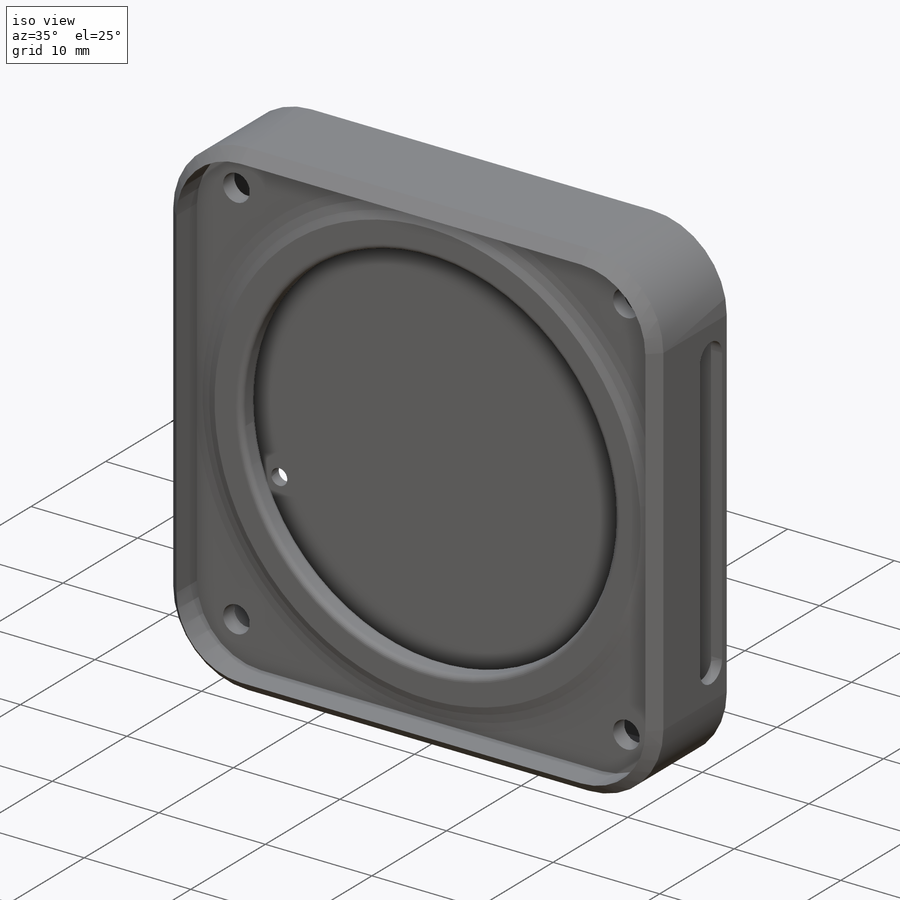
[diagram: iso view]
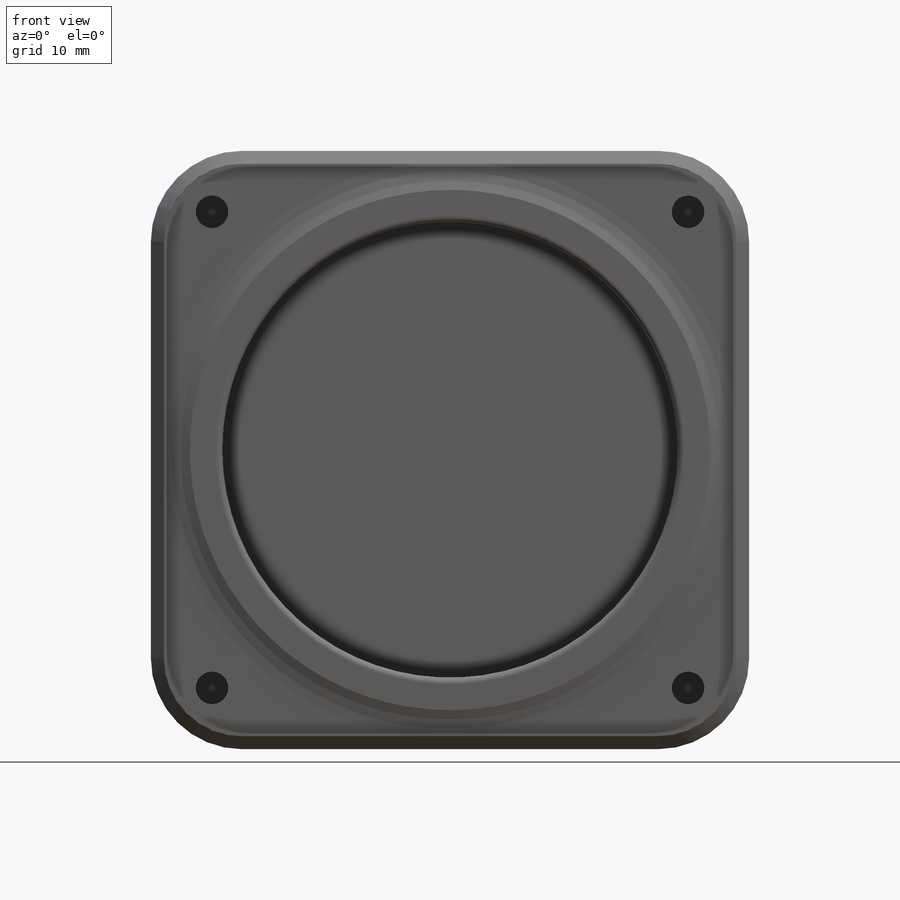
[diagram: front view]
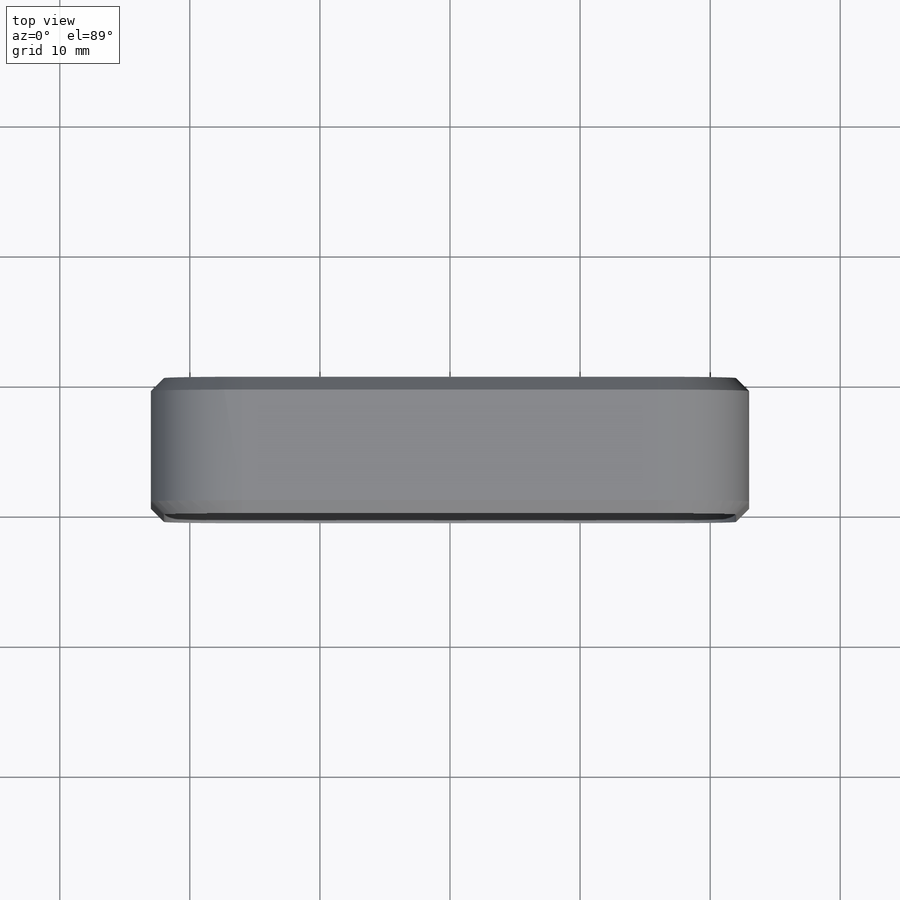
[diagram: top view]
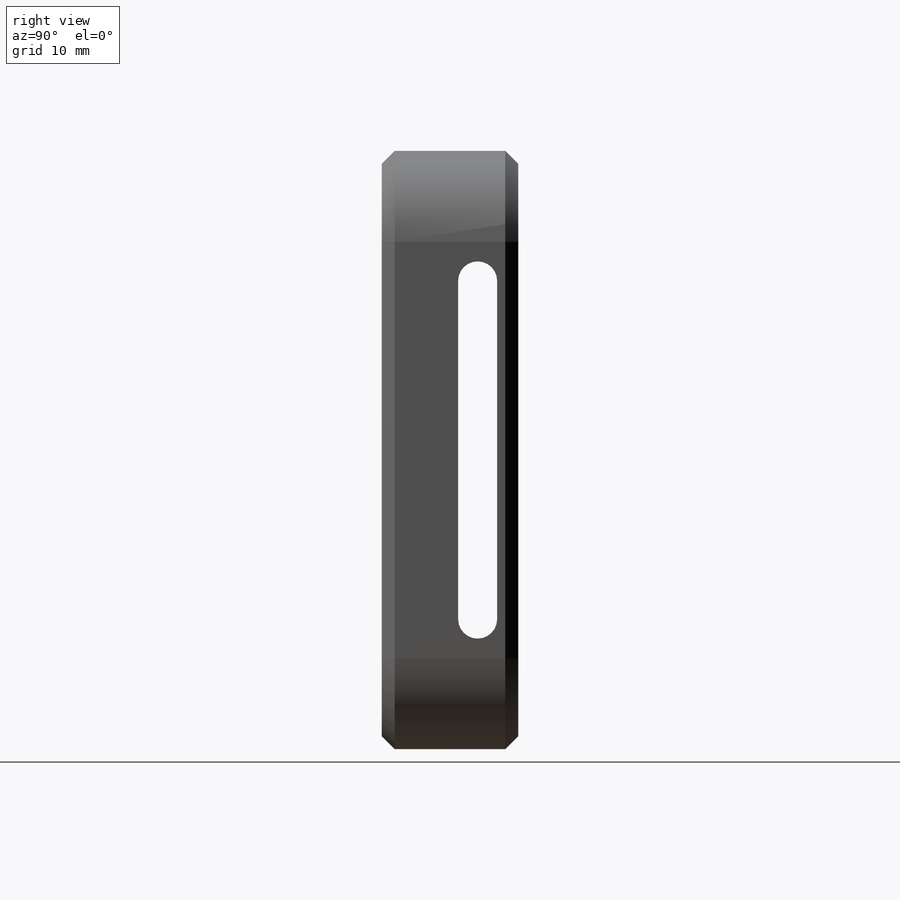
[diagram: right view]
SOLIDWORKS PART (.sldprt)
format: sldprt  version: not decoded by parser v0  size: 353,792 bytes
history: native  units: mm
features: plane x7, sketch x7, cut_extrude x4, extrude x3, fillet x2, chamfer x2, material x1, shell x1 (+8 scaffold rows collapsed)
feature tree (35):
  scaffold x8  (default folders/planes/origin — collapsed)
  material  "Material <sin especificar>"
  plane  "Alzado"
  plane  "Planta"
  plane  "Vista lateral"
  sketch  "Croquis3"  dims[D3=7.0mm D1=46.0mm D2=46.0mm]
  extrude  "Saliente-Extruir2"  Depth=10.5mm
  shell  "Vaciado1"  Thickness=1mm
  plane  "Plano1"  Offset=4.25mm
  sketch  "Croquis4"  dims[D1=40.0mm D2=35.0mm D3=32.0mm]
  extrude  "Saliente-Extruir3"  Depth=1.5mm
  plane  "Plano2"  Offset=0mm
  sketch  "Croquis5"  dims[D1=40.0mm]
  extrude  "Saliente-Extruir4"  Depth=0.5mm
  fillet  "Redondeo1"  Radius=5mm
  fillet  "Redondeo2"  Radius=0.5mm
  plane  "Plano3"  Offset=0mm
  sketch  "Croquis6"  dims[D1=6.25mm D2=26.0mm D3=3.0mm]
  cut_extrude  "Cortar-Extruir1"  [1 undecoded]
  chamfer  "Chaflán1"  Distance=1mm Angle=45deg
  chamfer  "Chaflán2"  Distance=1mm Angle=45deg
  plane  "Plano4"  Offset=0mm
  sketch  "Croquis7"  dims[D3=1.5mm D1=3.0mm D2=13.0mm]
  cut_extrude  "Cortar-Extruir2"  Depth=1mm
  sketch  "Croquis8"  dims[D1=1.0mm]
  cut_extrude  "Cortar-Extruir3"  Depth=10mm
  sketch  "Croquis9"  dims[D3=2.5mm D1=3.7mm D2=3.7mm]
  cut_extrude  "Cortar-Extruir4"  Depth=1.5mm
decode coverage: 18 of 19 modeling features carry decoded parameters
note: 1 parameter value undecoded
note: suppression state not decoded; provenance and decode notes live in map.json
